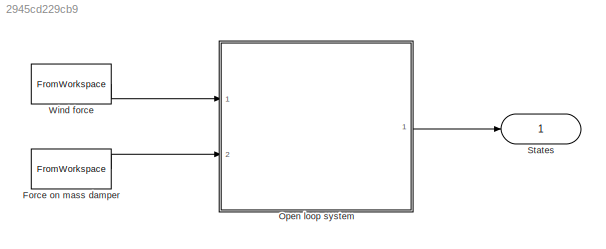
MODEL slx_2945cd229cb9
KIND model
CONFIG AbsTol = auto
CONFIG EnableMultiTasking = off
CONFIG FixedStep = auto
CONFIG MaxStep = auto
CONFIG MinStep = auto
CONFIG RelTol = 1e-3
CONFIG SampleTimeConstraint = Unconstrained
CONFIG Solver = VariableStepAuto
CONFIG SolverName = VariableStepAuto
CONFIG StartTime = 0.0
CONFIG StopTime = 10.0
BLOCK [FromWorkspace] Force on mass damper
  SampleTime = 0
  VariableName = u
  ZeroCross = on
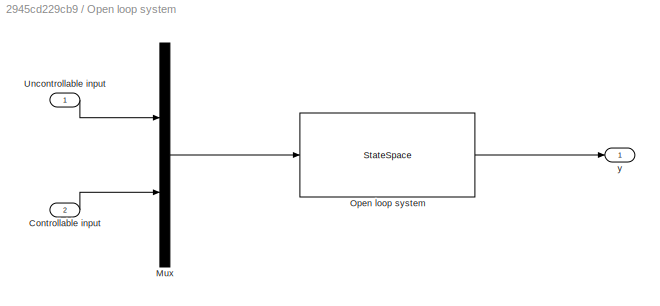
BLOCK [SubSystem] Open loop system
  Ports = [2, 1]
  RequestExecContextInheritance = off
BLOCK [Inport] Open loop system/Controllable input
  IconDisplay = Port number
  Port = 2
BLOCK [Mux] Open loop system/Mux
  DisplayOption = bar
  Inputs = 2
  Ports = [2, 1]
BLOCK [StateSpace] Open loop system/Open loop system
  A = ol.A
  B = ol.B
  C = ol.C
  D = ol.D
  InitialCondition = x0
  Ports = [1, 1]
BLOCK [Inport] Open loop system/Uncontrollable input
  IconDisplay = Port number
BLOCK [Outport] Open loop system/y
  IconDisplay = Port number
BLOCK [Outport] States
  IconDisplay = Port number
  SignalName = states
BLOCK [FromWorkspace] Wind force
  SampleTime = 0
  VariableName = d
  ZeroCross = on
LINE Force on mass damper:1 -> Open loop system:2
LINE Open loop system/Controllable input:1 -> Open loop system/Mux:2
LINE Open loop system/Mux:1 -> Open loop system/Open loop system:1
LINE Open loop system/Open loop system:1 -> Open loop system/y:1
LINE Open loop system/Uncontrollable input:1 -> Open loop system/Mux:1
LINE Open loop system:1 -> States:1
LINE Wind force:1 -> Open loop system:1
